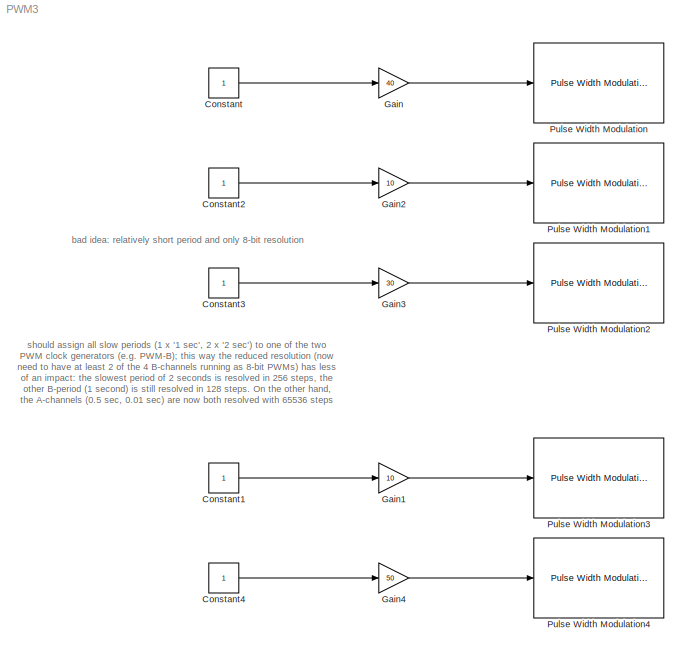
MODEL PWM3
KIND model
BLOCK [Constant] Constant
  SID = 1
BLOCK [Constant] Constant1
  SID = 2
BLOCK [Constant] Constant2
  SID = 3
BLOCK [Constant] Constant3
  SID = 4
BLOCK [Constant] Constant4
  SID = 5
BLOCK [Gain] Gain
  Gain = 40
  SID = 6
BLOCK [Gain] Gain1
  Gain = 10
  SID = 7
BLOCK [Gain] Gain2
  Gain = 10
  SID = 8
BLOCK [Gain] Gain3
  Gain = 30
  SID = 9
BLOCK [Gain] Gain4
  Gain = 50
  SID = 10
BLOCK [Reference] Pulse Width Modulation  REF=mc9s12tool/Pulse Width Modulation
  FunctionWithSeparateData = off
  PWMperiod = 1
  Ports = [1]
  RTWMemSecDataConstants = Inherit from model
  RTWMemSecDataInternal = Inherit from model
  RTWMemSecDataParameters = Inherit from model
  RTWMemSecFuncExecute = Inherit from model
  RTWMemSecFuncInitTerm = Inherit from model
  SID = 16
  ShowPortLabels = FromPortIcon
  SourceBlock = mc9s12tool/Pulse Width Modulation
  SourceType = Unknown
  SystemSampleTime = -1
  Tag = mcTarget_pwm
  Vmax = 100
  pulse_pin = 1  (8-bit / 16-bit)
  resolution = 16 bit
  sampletime = 0.01
  sig_mon = off
  sign_pin = 1
  sign_port = PTH
BLOCK [Reference] Pulse Width Modulation1  REF=mc9s12tool/Pulse Width Modulation
  FunctionWithSeparateData = off
  PWMperiod = 0.5
  Ports = [1]
  RTWMemSecDataConstants = Inherit from model
  RTWMemSecDataInternal = Inherit from model
  RTWMemSecDataParameters = Inherit from model
  RTWMemSecFuncExecute = Inherit from model
  RTWMemSecFuncInitTerm = Inherit from model
  SID = 17
  ShowPortLabels = FromPortIcon
  SourceBlock = mc9s12tool/Pulse Width Modulation
  SourceType = Unknown
  SystemSampleTime = -1
  Tag = mcTarget_pwm
  Vmax = 100
  pulse_pin = 4  (8-bit)
  resolution = 8 bit
  sampletime = 0.01
  sig_mon = off
  sign_pin = 2
  sign_port = PTH
BLOCK [Reference] Pulse Width Modulation2  REF=mc9s12tool/Pulse Width Modulation
  FunctionWithSeparateData = off
  PWMperiod = 0.01
  Ports = [1]
  RTWMemSecDataConstants = Inherit from model
  RTWMemSecDataInternal = Inherit from model
  RTWMemSecDataParameters = Inherit from model
  RTWMemSecFuncExecute = Inherit from model
  RTWMemSecFuncInitTerm = Inherit from model
  SID = 18
  ShowPortLabels = FromPortIcon
  SourceBlock = mc9s12tool/Pulse Width Modulation
  SourceType = Unknown
  SystemSampleTime = -1
  Tag = mcTarget_pwm
  Vmax = 100
  pulse_pin = 5  (8-bit / 16-bit)
  resolution = 8 bit
  sampletime = 0.01
  sig_mon = off
  sign_pin = 3
  sign_port = PTH
BLOCK [Reference] Pulse Width Modulation3  REF=mc9s12tool/Pulse Width Modulation
  FunctionWithSeparateData = off
  PWMperiod = 2
  Ports = [1]
  RTWMemSecDataConstants = Inherit from model
  RTWMemSecDataInternal = Inherit from model
  RTWMemSecDataParameters = Inherit from model
  RTWMemSecFuncExecute = Inherit from model
  RTWMemSecFuncInitTerm = Inherit from model
  SID = 19
  ShowPortLabels = FromPortIcon
  SourceBlock = mc9s12tool/Pulse Width Modulation
  SourceType = Unknown
  SystemSampleTime = -1
  Tag = mcTarget_pwm
  Vmax = 100
  pulse_pin = 3  (8-bit / 16-bit)
  resolution = 16 bit
  sampletime = 0.01
  sig_mon = off
  sign_pin = 4
  sign_port = PTH
BLOCK [Reference] Pulse Width Modulation4  REF=mc9s12tool/Pulse Width Modulation
  FunctionWithSeparateData = off
  PWMperiod = 2
  Ports = [1]
  RTWMemSecDataConstants = Inherit from model
  RTWMemSecDataInternal = Inherit from model
  RTWMemSecDataParameters = Inherit from model
  RTWMemSecFuncExecute = Inherit from model
  RTWMemSecFuncInitTerm = Inherit from model
  SID = 20
  ShowPortLabels = FromPortIcon
  SourceBlock = mc9s12tool/Pulse Width Modulation
  SourceType = Unknown
  SystemSampleTime = -1
  Tag = mcTarget_pwm
  Vmax = 100
  pulse_pin = 7  (8-bit / 16-bit)
  resolution = 16 bit
  sampletime = 0.01
  sig_mon = off
  sign_pin = 5
  sign_port = PTH
ANNOTATION (root): bad idea: relatively short period and only 8-bit resolution
ANNOTATION (root): should assign all slow periods (1 x '1 sec', 2 x '2 sec') to one of the two \nPWM clock generators (e.g. PWM-B); this way the reduced resolution (now \nneed to have at least 2 of the 4 B-channels running as 8-bit PWMs) has less\nof an impact: the slowest period of 2 seconds is resolved in 256 steps, the\nother B-period (1 second) is still resolved in 128 steps. On the other hand, \nthe A-channels ...<+58ch>
LINE Constant1:1 -> Gain1:1
LINE Constant2:1 -> Gain2:1
LINE Constant3:1 -> Gain3:1
LINE Constant4:1 -> Gain4:1
LINE Constant:1 -> Gain:1
LINE Gain1:1 -> Pulse Width Modulation3:1
LINE Gain2:1 -> Pulse Width Modulation1:1
LINE Gain3:1 -> Pulse Width Modulation2:1
LINE Gain4:1 -> Pulse Width Modulation4:1
LINE Gain:1 -> Pulse Width Modulation:1
